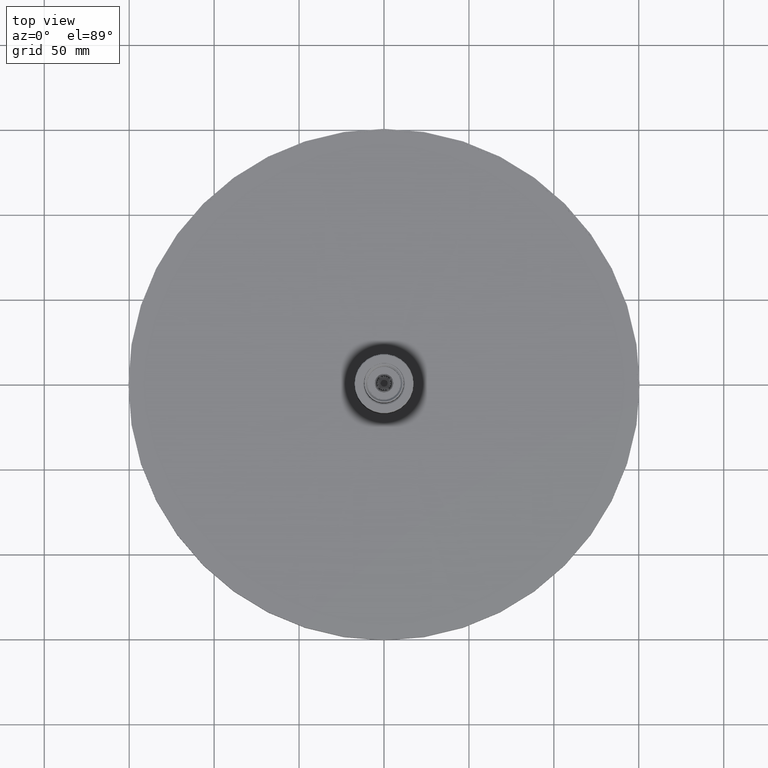
[diagram: clean part render]
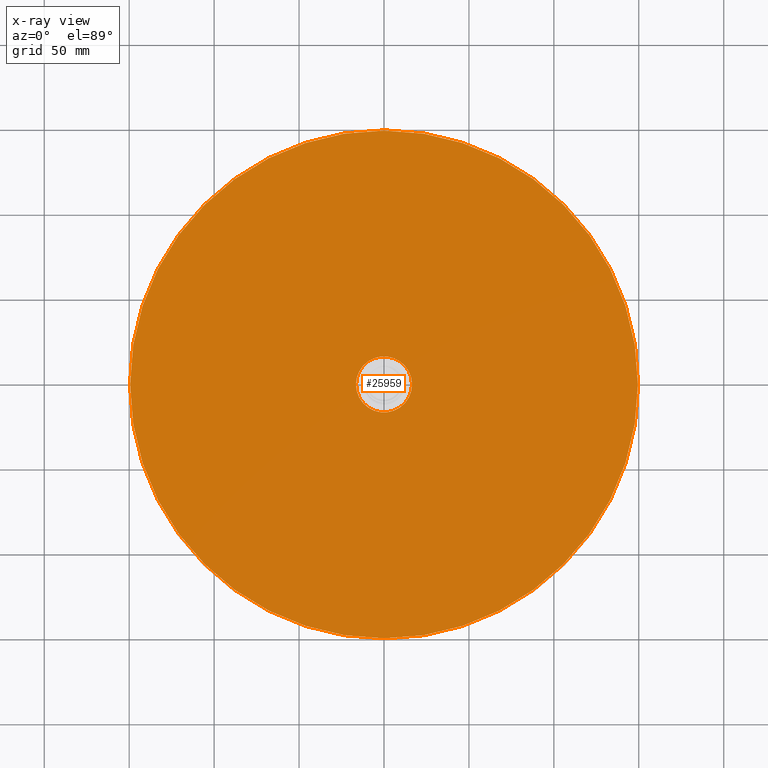
[diagram: x-ray — body ghosted, one internal face saturated and labeled with its STEP entity id]
A machine part, top view, then the same camera in x-ray: the body is ghosted and one INTERNAL B-rep face — a face not visible from any outside direction — is saturated and labeled: STEP entity #25959.
In plain terms, the highlighted planar face has unit normal (-0, -0, -1).
Its self-contained STEP definition (entity closure, byte-faithful):
#25882=CARTESIAN_POINT('',(-16.5,-2.02060048380692E-015,10.));
#25883=VERTEX_POINT('Vertex969',#25882);
#25884=CARTESIAN_POINT('',(16.5,0.,10.));
#25885=VERTEX_POINT('Vertex2105',#25884);
#25886=CARTESIAN_POINT('',(-8.88178419700125E-016,1.88737914186277E-015,10.));
#25887=DIRECTION('',(-0.,0.,1.));
#25888=DIRECTION('',(-1.,-2.36847250040587E-016,0.));
#25889=AXIS2_PLACEMENT_3D('',#25886,#25887,#25888);
#25890=CIRCLE('',#25889,16.5);
#25891=EDGE_CURVE('Edge3609',#25883,#25885,#25890,.T.);
#25893=CARTESIAN_POINT('',(1.22124532708767E-015,-2.1094237467878E-015,10.));
#25894=DIRECTION('',(0.,-0.,1.));
#25895=DIRECTION('',(1.,1.27843863441685E-016,0.));
#25896=AXIS2_PLACEMENT_3D('',#25893,#25894,#25895);
#25897=CIRCLE('',#25896,16.5);
#25898=EDGE_CURVE('Edge3610',#25885,#25883,#25897,.T.);
#25919=CARTESIAN_POINT('',(149.5,0.,10.));
#25920=VERTEX_POINT('Vertex971',#25919);
#25921=CARTESIAN_POINT('',(1.77635683940025E-015,-1.11022302462516E-014,10.));
#25922=DIRECTION('',(0.,-0.,1.));
#25923=DIRECTION('',(1.,7.42624096739235E-017,0.));
#25924=AXIS2_PLACEMENT_3D('',#25921,#25922,#25923);
#25925=CIRCLE('',#25924,149.5);
#25926=EDGE_CURVE('Edge971',#25920,#25920,#25925,.T.);
#25947=ORIENTED_EDGE('Edgeuse1943',*,*,#25926,.F.);
#25948=EDGE_LOOP('',(#25947));
#25949=FACE_OUTER_BOUND('',#25948,.T.);
#25950=ORIENTED_EDGE('Edgeuse7222',*,*,#25891,.T.);
#25951=ORIENTED_EDGE('Edgeuse7224',*,*,#25898,.T.);
#25952=EDGE_LOOP('',(#25950,#25951));
#25953=FACE_BOUND('',#25952,.T.);
#25954=CARTESIAN_POINT('',(0.,0.,10.));
#25955=DIRECTION('',(-0.,-0.,-1.));
#25956=DIRECTION('',(0.,-1.,0.));
#25957=AXIS2_PLACEMENT_3D('',#25954,#25955,#25956);
#25958=PLANE('',#25957);
#25959=ADVANCED_FACE('Face769',(#25949,#25953),#25958,.T.);